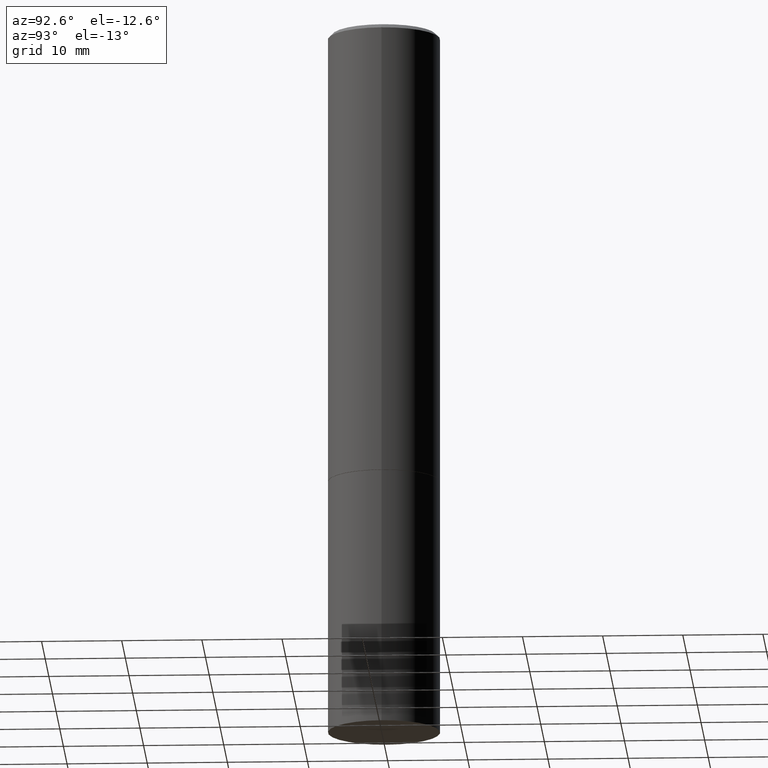
[diagram: clean part render]
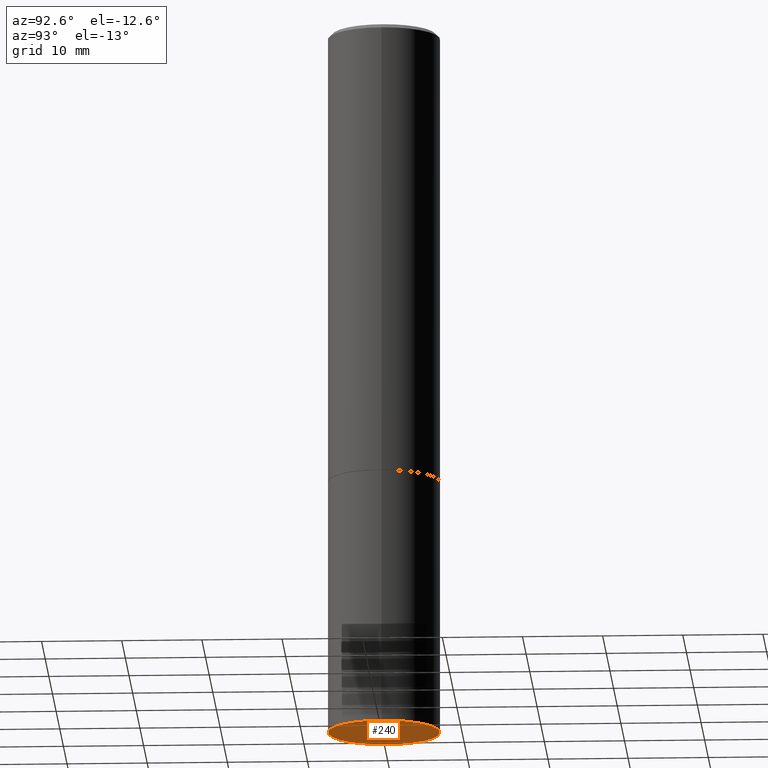
[diagram: same view with one face highlighted and labeled with its STEP entity id]
A machine part, auxiliary view. The second image highlights one B-rep face of the part: STEP entity #240.
In plain terms, the highlighted planar face has unit normal (0, -0, -1).
Its self-contained STEP definition (entity closure, byte-faithful):
#36 = AXIS2_PLACEMENT_3D ( 'NONE', #288, #144, #214 ) ;
#40 = CIRCLE ( 'NONE', #36, 0.2756000000000000116 ) ;
#59 = ORIENTED_EDGE ( 'NONE', *, *, #165, .F. ) ;
#85 = EDGE_LOOP ( 'NONE', ( #59, #225 ) ) ;
#102 = FACE_OUTER_BOUND ( 'NONE', #85, .T. ) ;
#105 = DIRECTION ( 'NONE',  ( 2.438088387897960049E-29, -3.491481338843145188E-15, -1.000000000000000000 ) ) ;
#123 = CARTESIAN_POINT ( 'NONE',  ( 8.568678149992099474E-29, -1.223380146317249786E-14, -3.503899999999999793 ) ) ;
#141 = VERTEX_POINT ( 'NONE', #234 ) ;
#144 = DIRECTION ( 'NONE',  ( -2.445468806185136597E-29, 3.491481338843145583E-15, 1.000000000000000000 ) ) ;
#151 = DIRECTION ( 'NONE',  ( 1.000000000000000000, -6.982962677686265922E-15, 0.000000000000000000 ) ) ;
#157 = PLANE ( 'NONE',  #173 ) ;
#165 = EDGE_CURVE ( 'NONE', #141, #361, #314, .T. ) ;
#173 = AXIS2_PLACEMENT_3D ( 'NONE', #275, #105, #220 ) ;
#214 = DIRECTION ( 'NONE',  ( 1.000000000000000000, -6.982962677686265922E-15, 0.000000000000000000 ) ) ;
#220 = DIRECTION ( 'NONE',  ( -1.000000000000000000, 6.982962677686265922E-15, -4.876176775795935793E-29 ) ) ;
#225 = ORIENTED_EDGE ( 'NONE', *, *, #305, .F. ) ;
#234 = CARTESIAN_POINT ( 'NONE',  ( 0.2756000000000000116, -1.415830597714283281E-14, -3.503899999999999793 ) ) ;
#240 = ADVANCED_FACE ( 'NONE', ( #102 ), #157, .T. ) ;
#275 = CARTESIAN_POINT ( 'NONE',  ( 1.924504513970420545E-15, 0.2755999999999877992, -3.503900000000000681 ) ) ;
#283 = AXIS2_PLACEMENT_3D ( 'NONE', #123, #295, #151 ) ;
#288 = CARTESIAN_POINT ( 'NONE',  ( 8.568678149992099474E-29, -1.223380146317249786E-14, -3.503899999999999793 ) ) ;
#295 = DIRECTION ( 'NONE',  ( -2.445468806185136597E-29, 3.491481338843145583E-15, 1.000000000000000000 ) ) ;
#305 = EDGE_CURVE ( 'NONE', #361, #141, #40, .T. ) ;
#314 = CIRCLE ( 'NONE', #283, 0.2756000000000000116 ) ;
#351 = CARTESIAN_POINT ( 'NONE',  ( -0.2756000000000000116, -8.076261588080363510E-15, -3.503899999999999793 ) ) ;
#361 = VERTEX_POINT ( 'NONE', #351 ) ;